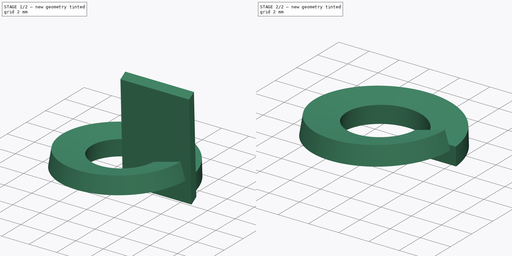
[diagram: build sequence overview — one tinted view per stage of 2, left to right]
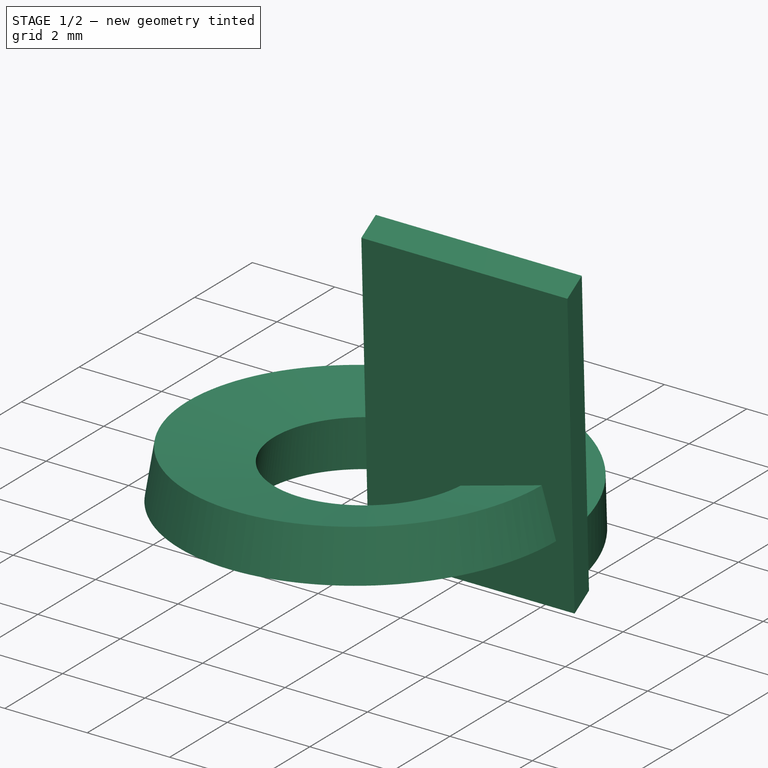
[diagram: stage 1 of 2 — iso view after this stage's code; geometry added in this stage tinted green]
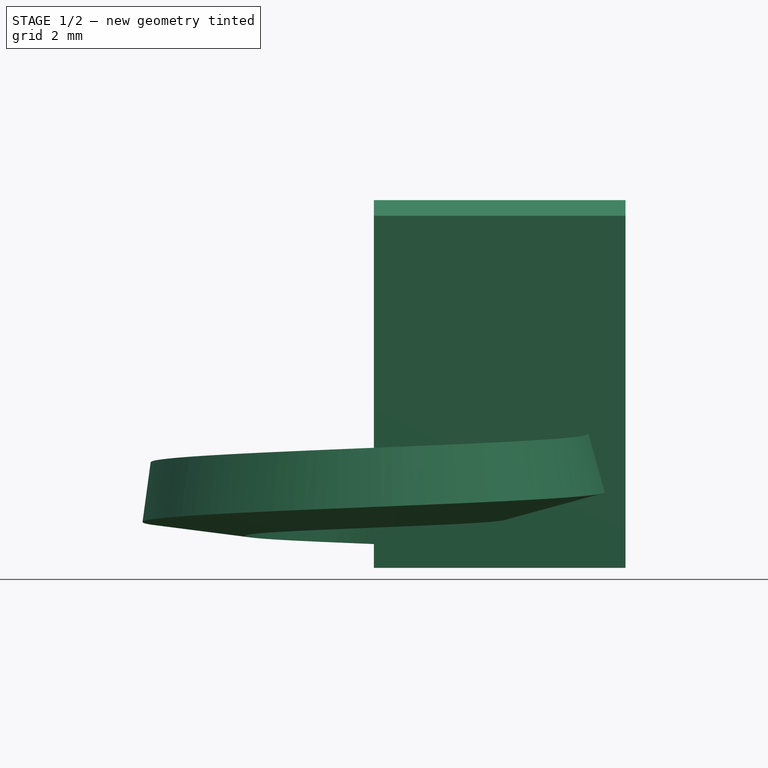
[diagram: stage 1 of 2 — front view after this stage's code; geometry added in this stage tinted green]
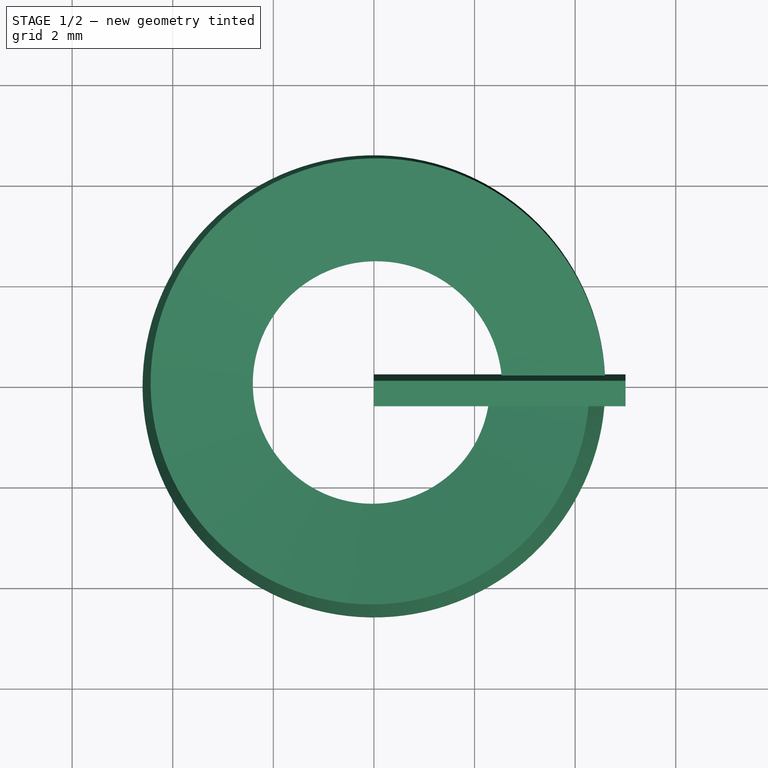
[diagram: stage 1 of 2 — top view after this stage's code; geometry added in this stage tinted green]
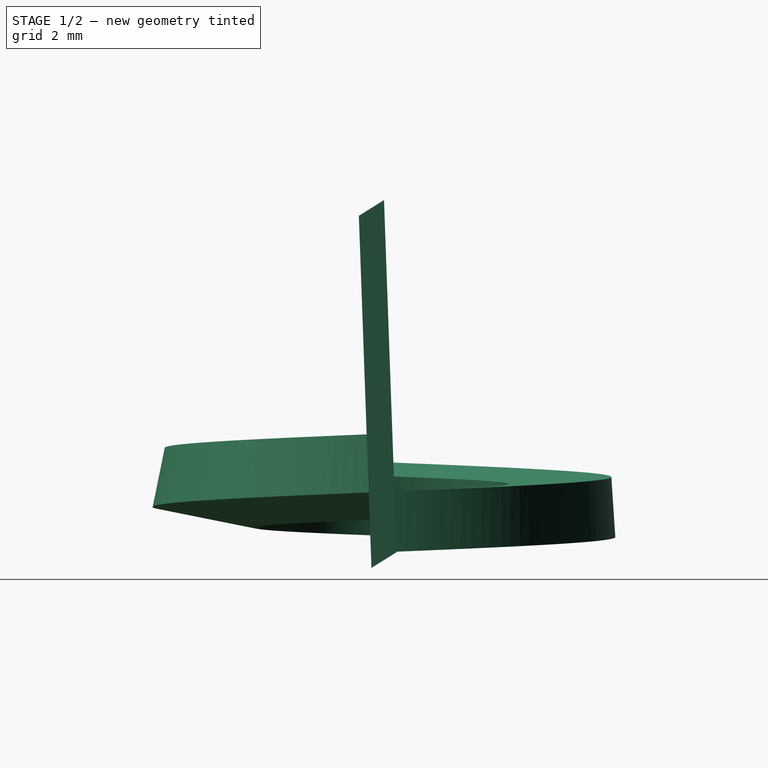
[diagram: stage 1 of 2 — right view after this stage's code; geometry added in this stage tinted green]
FCSTD DOCUMENT  (FreeCAD 0.15R4671 (Git))
Label: DIN127_CLASS_B_M5GrowerWasher
License: CreativeCommons Attribution-ShareAlike
LicenseURL: http://creativecommons.org/licenses/by-sa/4.0/
objects: Sketcher::SketchObject×3, Part::Helix×1, Part::Sweep×1, PartDesign::Pad×1, Part::Cut×1
note: 8 computed .brp shape members not serialized (recipe doc carries the construction recipe); baked Part::Feature solids carry a one-line shape summary decoded from their .brp

FEATURE [Sketcher::SketchObject] Sketch
FEATURE [Sketcher::SketchObject] Sketch001
  Placement = pos=(0,0,0) rot=(1,0,0;1.5708rad)
  sketch-geometry (4):
    g0: LineSegment StartX=2.55 StartY=1.2 StartZ=0 EndX=4.6 EndY=1.2 EndZ=0
    g1: LineSegment StartX=4.6 StartY=1.2 StartZ=0 EndX=4.6 EndY=0 EndZ=0
    g2: LineSegment StartX=4.6 StartY=0 StartZ=0 EndX=2.55 EndY=0 EndZ=0
    g3: LineSegment StartX=2.55 StartY=0 StartZ=0 EndX=2.55 EndY=1.2 EndZ=0
  constraints (12):
    c: Coincident(g0,g1)
    c: Coincident(g1,g2)
    c: Coincident(g2,g3)
    c: Coincident(g3,g0)
    c: Horizontal(g0)
    c: Horizontal(g2)
    c: Vertical(g1)
    c: Vertical(g3)
    c: PointOnObject(g1,g-1)
    c: DistanceX(g-1,g1) = 4.6
    c: DistanceX(g-1,g2) = 2.55
    c: DistanceY(g3) = 1.2
FEATURE [Sketcher::SketchObject] Sketch002
  Placement = pos=(0,0,0) rot=(0.57735,0.57735,0.57735;2.0944rad)
  sketch-geometry (4):
    g0: LineSegment StartX=-0.5 StartY=6.68701 StartZ=0 EndX=-0.25 EndY=-0.312986 EndZ=0
    g1: LineSegment StartX=-0.25 StartY=-0.312986 StartZ=0 EndX=0.25 EndY=0 EndZ=0
    g2: LineSegment StartX=0.25 StartY=0 StartZ=0 EndX=0 EndY=7 EndZ=0
    g3: LineSegment StartX=0 StartY=7 StartZ=0 EndX=-0.5 EndY=6.68701 EndZ=0
  constraints (12):
    c: Coincident(g0,g1)
    c: Coincident(g1,g2)
    c: Coincident(g2,g3)
    c: Coincident(g3,g0)
    c: Angle(g1,g0) = 1.0472
    c: DistanceX(g1) = 0.5
    c: Equal(g1,g3)
    c: Equal(g2,g0)
    c: DistanceX(g-1,g1) = 0.25
    c: PointOnObject(g1,g-1)
    c: PointOnObject(g2,g-2)
    c: DistanceY(g2) = 7
FEATURE [Part::Helix] Helix  label="Espiral"
  Angle = 0
  Height = 1.2
  LocalCoord = 0
  Pitch = 1.2
  Radius = 4.6
  Style = 1
FEATURE [Part::Sweep] Sweep
  Frenet = false
  Sections = -> [Sketch001]
  Solid = true
  Spine = -> Helix [Edge1]
  Transition = 1
FEATURE [PartDesign::Pad] Pad
  Length = 5
  Length2 = 100
  Placement = pos=(0,0,0) rot=(0.57735,0.57735,0.57735;2.0944rad)
  Sketch = -> Sketch002
  Type = 0
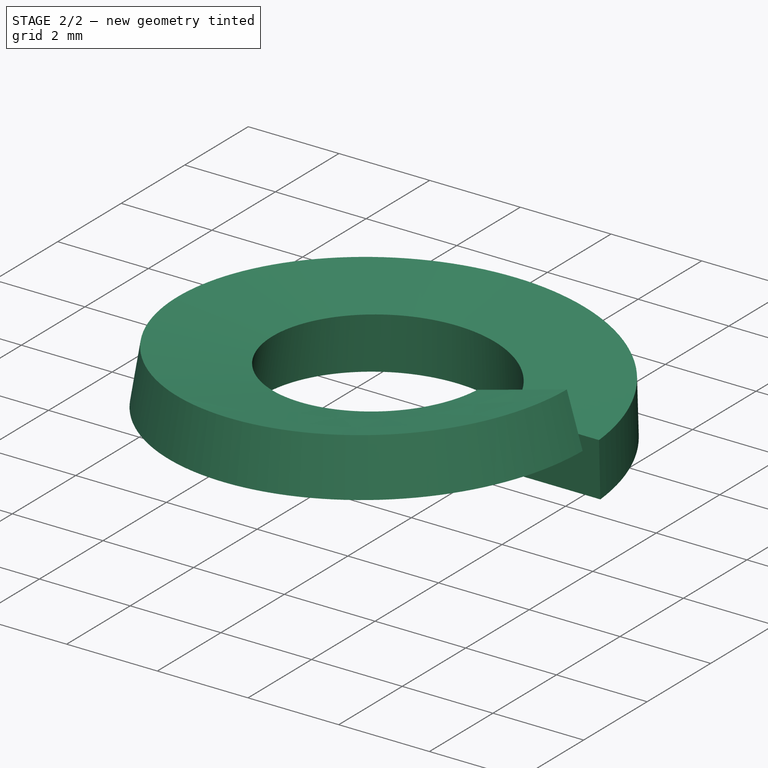
[diagram: stage 2 of 2 — iso view after this stage's code; geometry added in this stage tinted green]
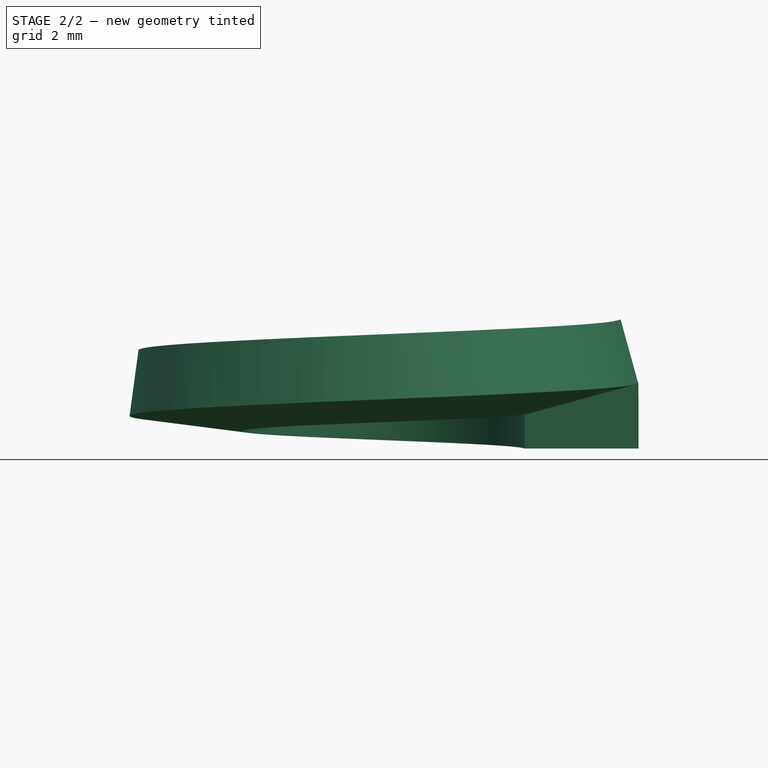
[diagram: stage 2 of 2 — front view after this stage's code; geometry added in this stage tinted green]
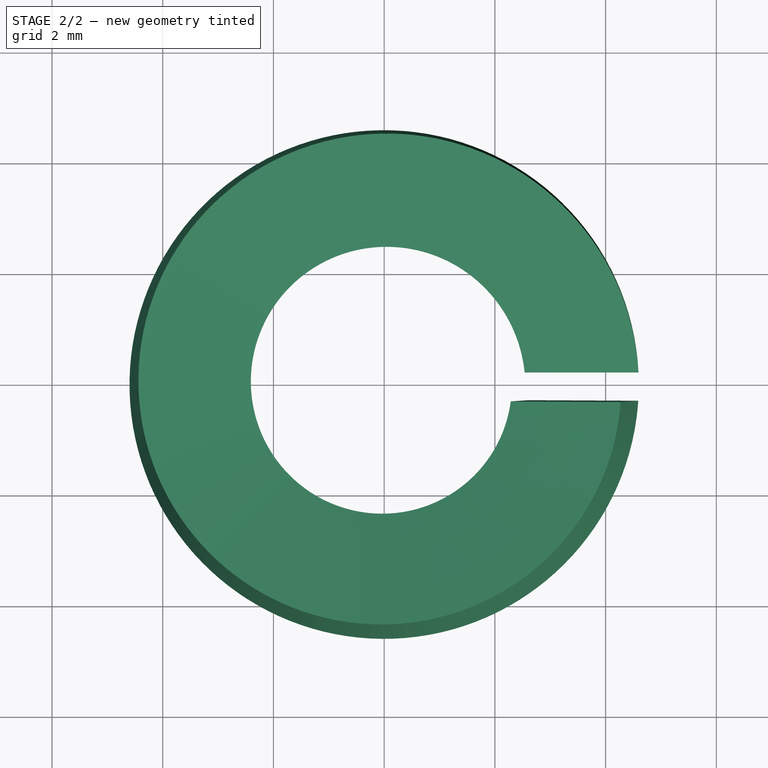
[diagram: stage 2 of 2 — top view after this stage's code; geometry added in this stage tinted green]
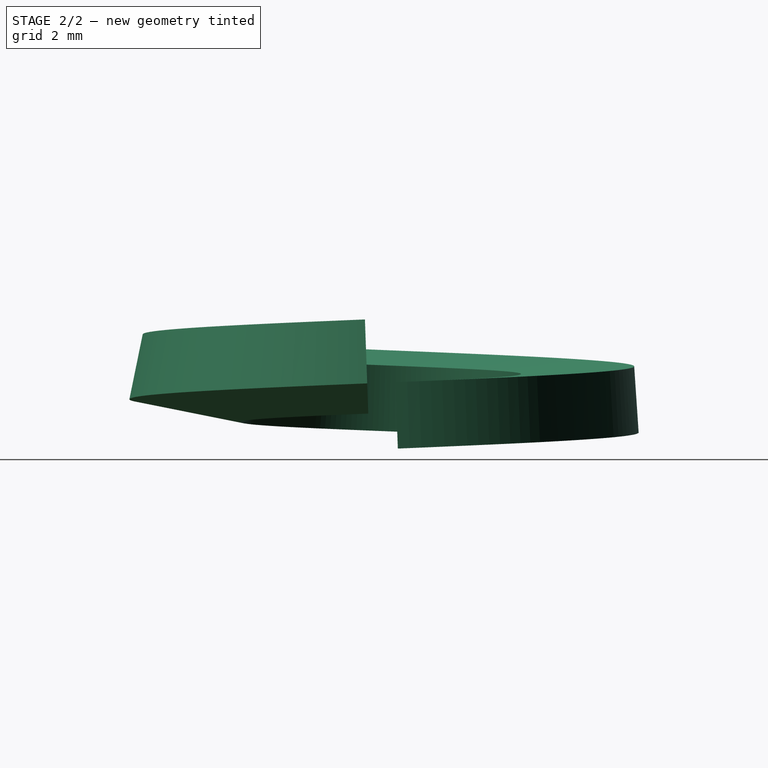
[diagram: stage 2 of 2 — right view after this stage's code; geometry added in this stage tinted green]
FEATURE [Part::Cut] Cut
  Base = -> Sweep
  Tool = -> Pad
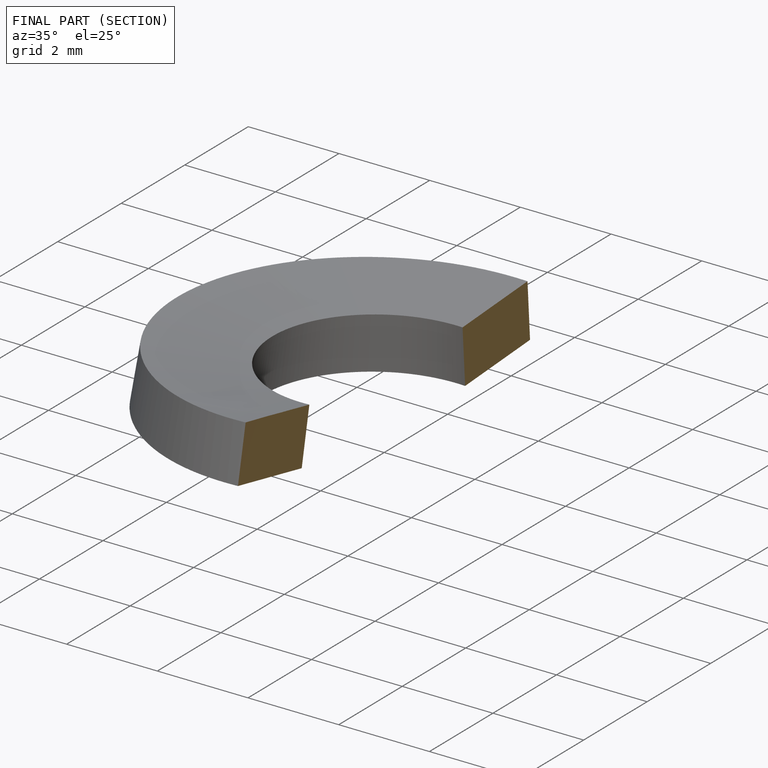
[diagram: finished part — half-section view (interior)]
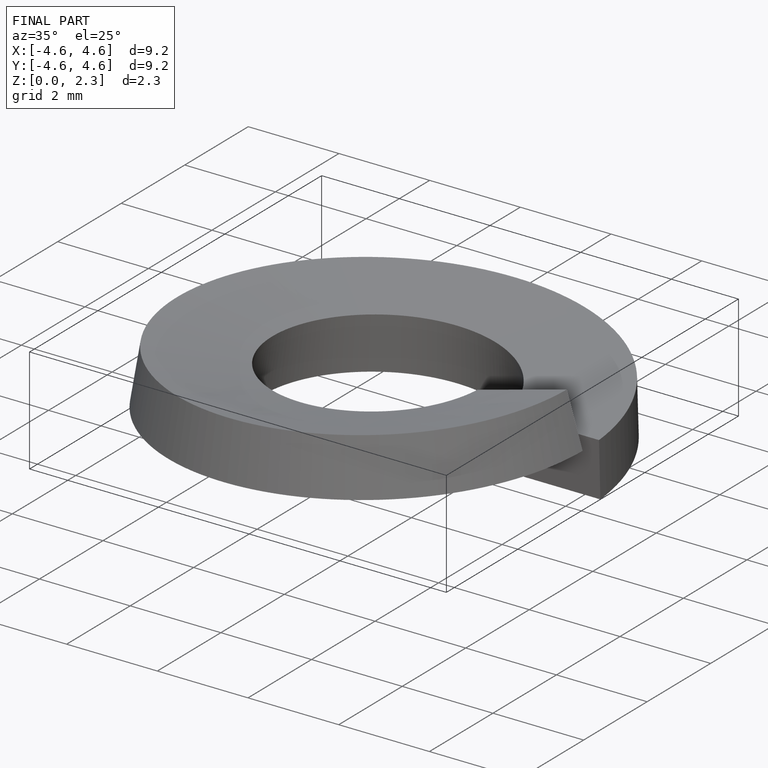
[diagram: finished part — iso view with bounding-box wireframe]
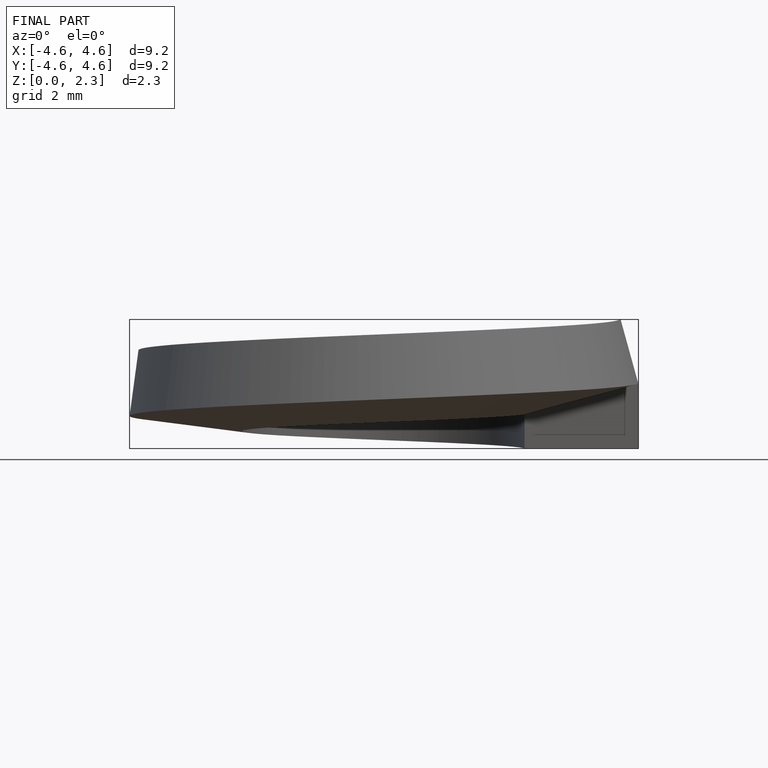
[diagram: finished part — front view with bounding-box wireframe]
